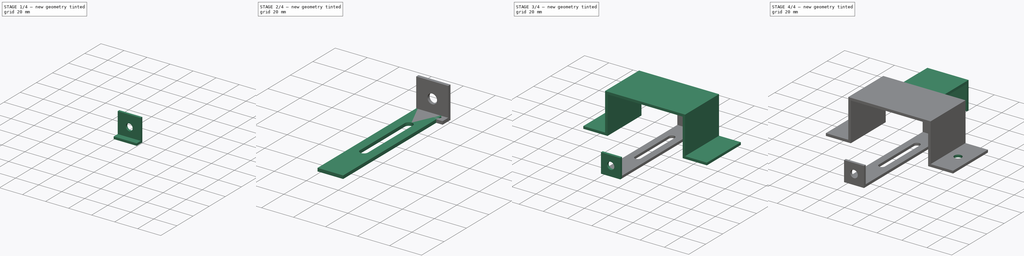
[diagram: build sequence overview — one tinted view per stage of 4, left to right]
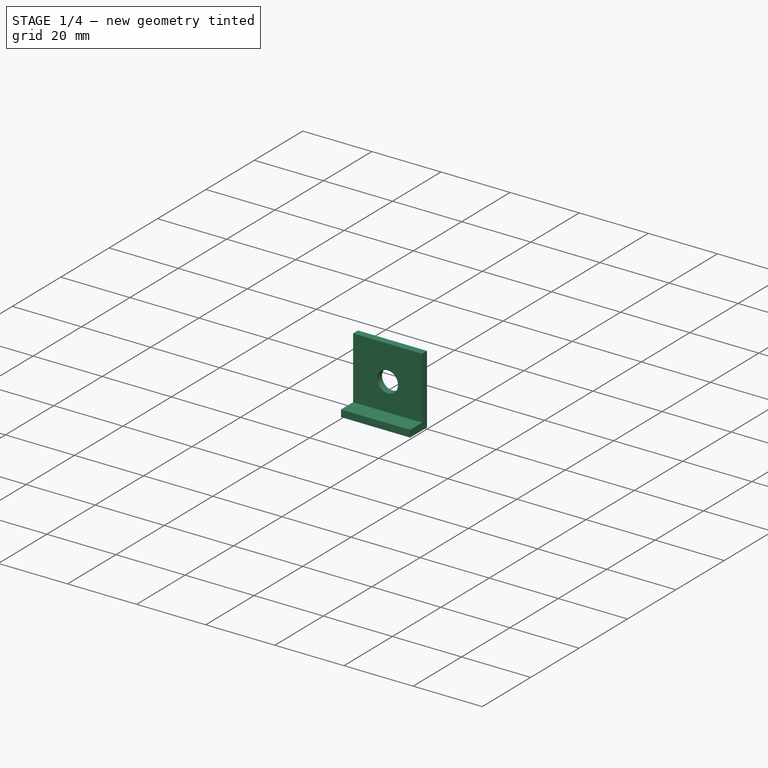
[diagram: stage 1 of 4 — iso view after this stage's code; geometry added in this stage tinted green]
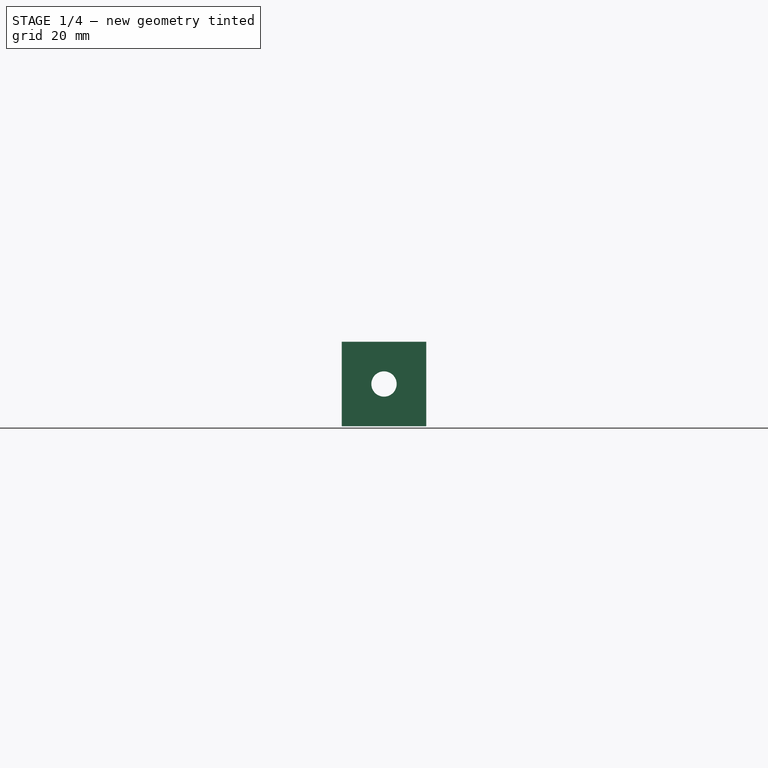
[diagram: stage 1 of 4 — front view after this stage's code; geometry added in this stage tinted green]
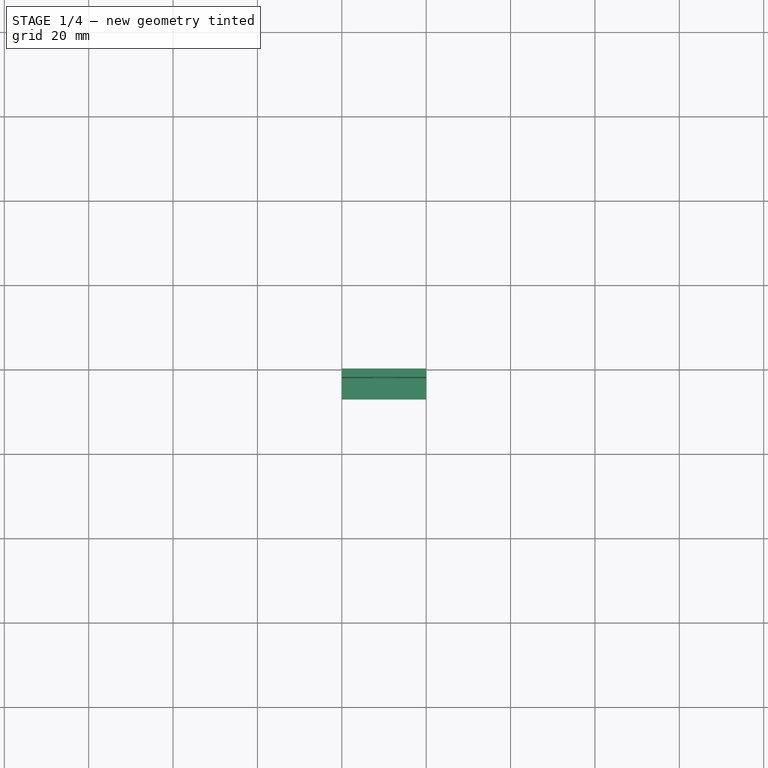
[diagram: stage 1 of 4 — top view after this stage's code; geometry added in this stage tinted green]
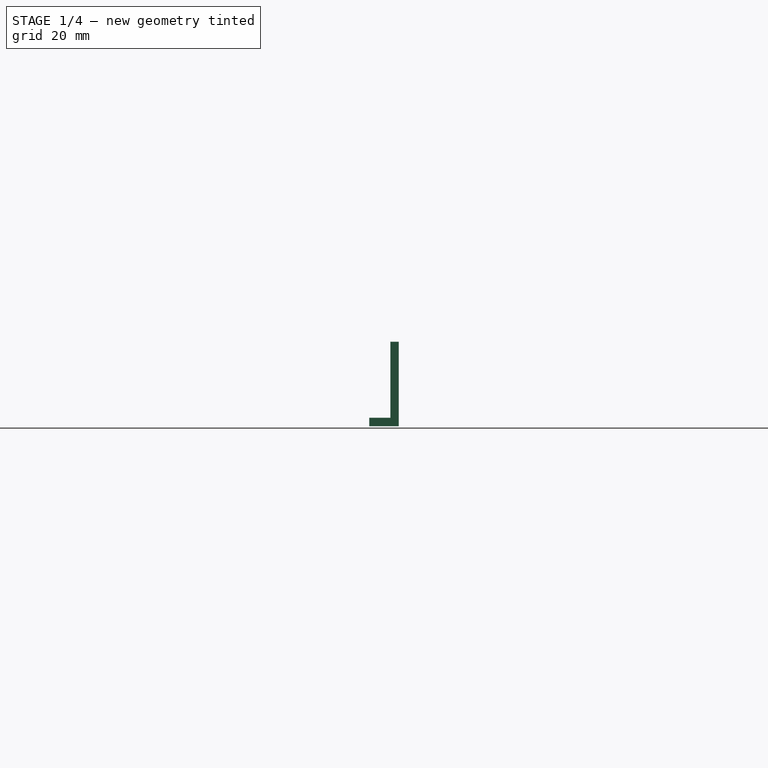
[diagram: stage 1 of 4 — right view after this stage's code; geometry added in this stage tinted green]
FCSTD DOCUMENT  (FreeCAD 0.18R16146 (Git))
Label: octopi_case
License: All rights reserved
LicenseURL: http://en.wikipedia.org/wiki/All_rights_reserved
objects: Sketcher::SketchObject×12, PartDesign::Pad×7, PartDesign::Hole×3, PartDesign::Body×3, PartDesign::Pocket×2, App::MeasureDistance×1
note: 39 computed .brp shape members not serialized (recipe doc carries the construction recipe); baked Part::Feature solids carry a one-line shape summary decoded from their .brp

FEATURE [PartDesign::Body] Body001  label="cam_bar"
  Group = -> [Sketch004,Pad003,Sketch005,Pocket,Sketch006,Pad004,Sketch007,Hole001]
  Origin = -> Origin001
  Placement = pos=(33,0,2) rot=(0,0,1;0rad)
  Tip = -> Hole001
FEATURE [Sketcher::SketchObject] Sketch008
  MapMode = 5
  Placement = pos=(0,0,0) rot=(1,0,0;1.5708rad)
  Support = -> [XZ_Plane002]
  sketch-geometry (4):
    g0: LineSegment StartX=0 StartY=20 StartZ=0 EndX=20 EndY=20 EndZ=0
    g1: LineSegment StartX=20 StartY=20 StartZ=0 EndX=20 EndY=0 EndZ=0
    g2: LineSegment StartX=20 StartY=0 StartZ=0 EndX=0 EndY=0 EndZ=0
    g3: LineSegment StartX=0 StartY=0 StartZ=0 EndX=0 EndY=20 EndZ=0
  constraints (11):
    c: Coincident(g0,g1)
    c: Coincident(g1,g2)
    c: Coincident(g2,g3)
    c: Coincident(g3,g0)
    c: Horizontal(g0)
    c: Horizontal(g2)
    c: Vertical(g1)
    c: Vertical(g3)
    c: Equal(g0,g1)
    c: DistanceX(g0,g0) = 20
    c: Coincident(g2,g-1)
FEATURE [PartDesign::Pad] Pad005
  Length = 2
  Length2 = 100
  Placement = pos=(0,0,0) rot=(1,0,0;1.5708rad)
  Profile = -> Sketch008
  Type = 0
FEATURE [Sketcher::SketchObject] Sketch009
  ExternalGeometry = -> [Pad005]
  MapMode = 5
  Placement = pos=(0,-2,1.3e-15) rot=(1,0,0;1.5708rad)
  Support = -> [Pad005]
  sketch-geometry (3):
    g0: LineSegment [constr] StartX=0 StartY=20 StartZ=0 EndX=20 EndY=0 EndZ=0
    g1: LineSegment [constr] StartX=20 StartY=20 StartZ=0 EndX=0 EndY=0 EndZ=0
    g2: Circle CenterX=10 CenterY=10 CenterZ=0 NormalX=0 NormalY=0 NormalZ=1 AngleXU=0 Radius=2.5
  constraints (7):
    c: Coincident(g0,g-5)
    c: Coincident(g0,g-6)
    c: Coincident(g1,g-4)
    c: Coincident(g1,g-1)
    c: Radius(g2) = 2.5
    c: PointOnObject(g2,g1)
    c: PointOnObject(g2,g0)
FEATURE [PartDesign::Hole] Hole002
  BaseFeature = -> Pad005
  Depth = 25
  DepthType = 0
  Diameter = 6
  DrillPoint = 1
  DrillPointAngle = 118
  HoleCutCountersinkAngle = 90
  HoleCutDepth = 0
  HoleCutDiameter = 0
  HoleCutType = 0
  ModelActualThread = false
  Placement = pos=(0,0,0) rot=(1,0,0;1.5708rad)
  Profile = -> Sketch009
  Tapered = false
  TaperedAngle = 90
  ThreadAngle = 0
  ThreadClass = 0
  ThreadCutOffInner = 0
  ThreadCutOffOuter = 0
  ThreadDirection = 0
  ThreadFit = 0
  ThreadPitch = 0
  ThreadSize = 0
  ThreadType = 0
  Threaded = false
FEATURE [Sketcher::SketchObject] Sketch010
  ExternalGeometry = -> [Hole002]
  MapMode = 5
  Placement = pos=(0,-2,2.2e-15) rot=(1,0,0;1.5708rad)
  Support = -> [Hole002]
  sketch-geometry (4):
    g0: LineSegment StartX=0 StartY=2 StartZ=0 EndX=20 EndY=2 EndZ=0
    g1: LineSegment StartX=20 StartY=2 StartZ=0 EndX=20 EndY=0 EndZ=0
    g2: LineSegment StartX=20 StartY=0 StartZ=0 EndX=0 EndY=0 EndZ=0
    g3: LineSegment StartX=0 StartY=0 StartZ=0 EndX=0 EndY=2 EndZ=0
  constraints (10):
    c: Coincident(g0,g1)
    c: Coincident(g1,g2)
    c: Coincident(g2,g3)
    c: Coincident(g3,g0)
    c: Horizontal(g0)
    c: Vertical(g1)
    c: Vertical(g3)
    c: DistanceY(g1,g1) = 2
    c: Coincident(g2,g-1)
    c: Coincident(g1,g-3)
FEATURE [PartDesign::Pad] Pad006
  BaseFeature = -> Hole002
  Length = 5
  Length2 = 100
  Placement = pos=(0,0,0) rot=(1,0,0;1.5708rad)
  Profile = -> Sketch010
  Type = 0
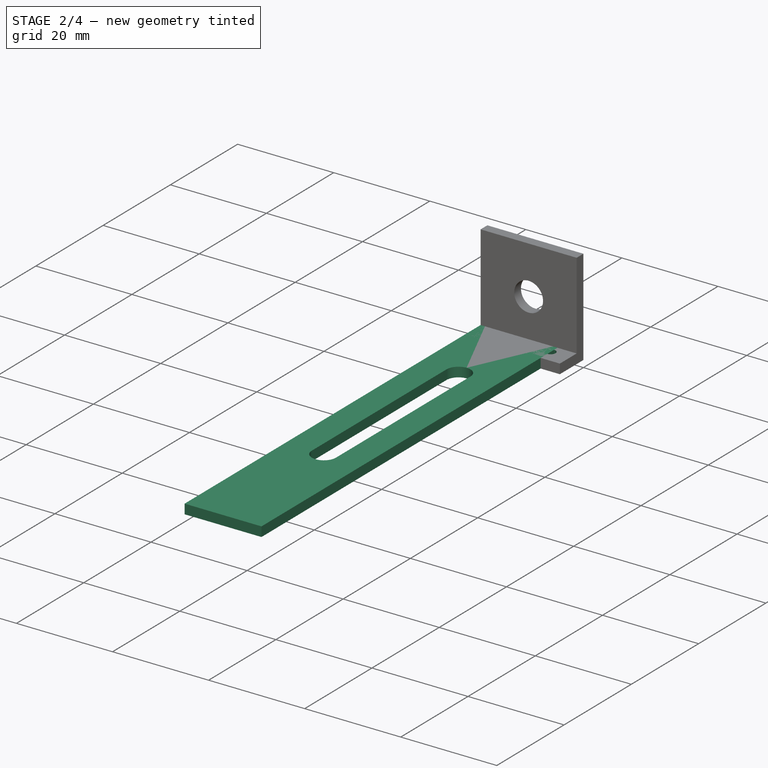
[diagram: stage 2 of 4 — iso view after this stage's code; geometry added in this stage tinted green]
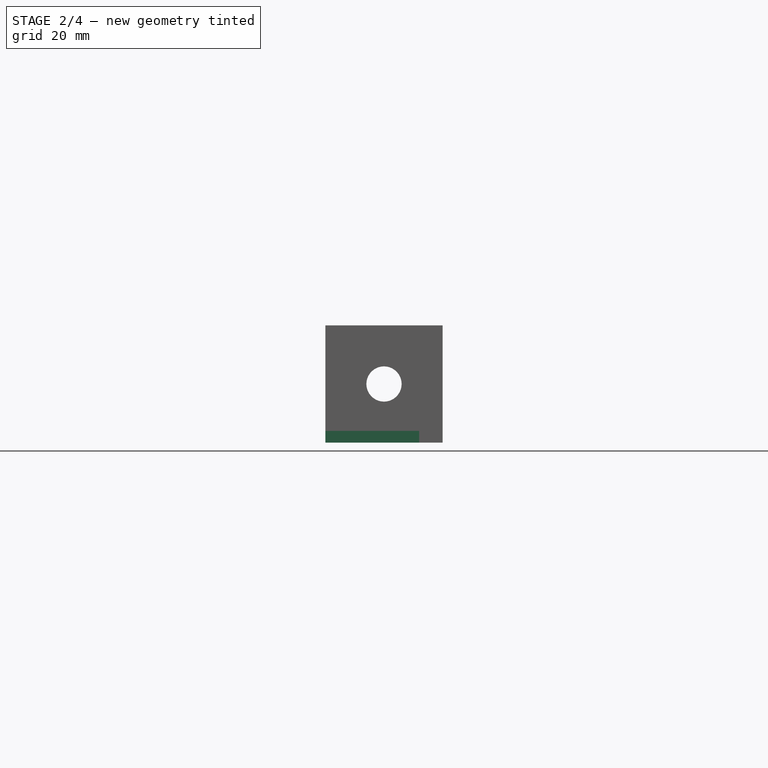
[diagram: stage 2 of 4 — front view after this stage's code; geometry added in this stage tinted green]
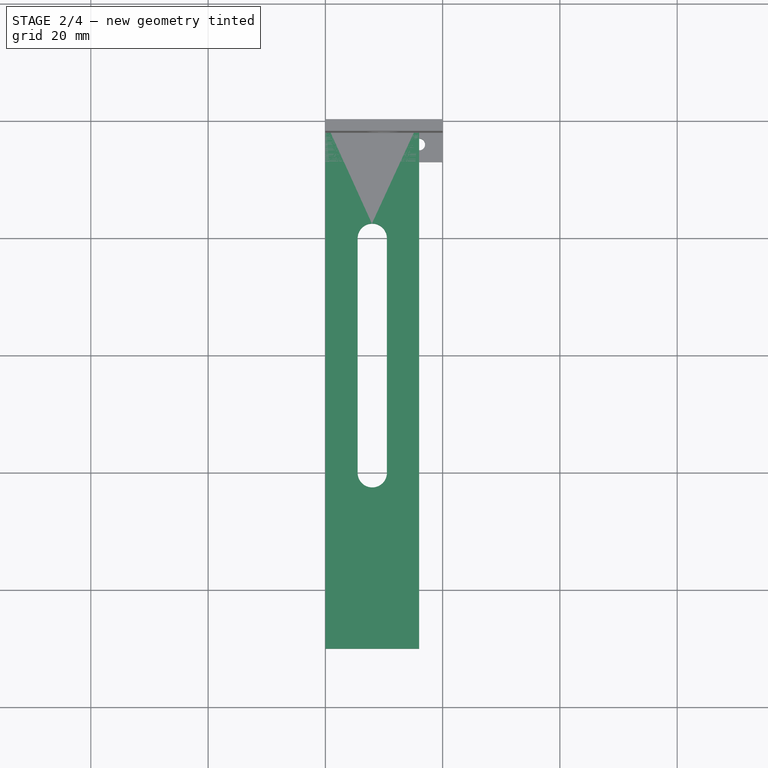
[diagram: stage 2 of 4 — top view after this stage's code; geometry added in this stage tinted green]
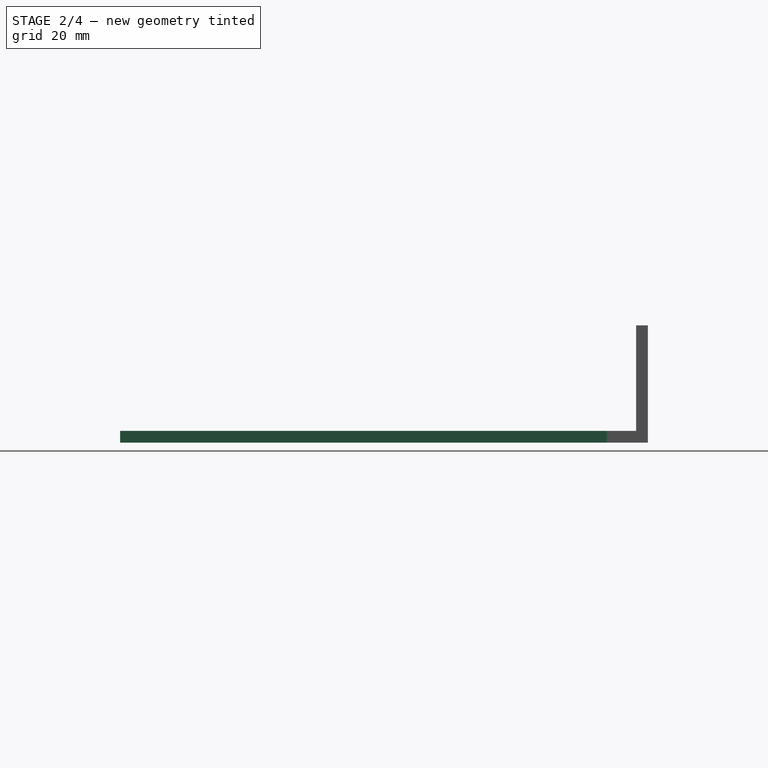
[diagram: stage 2 of 4 — right view after this stage's code; geometry added in this stage tinted green]
FEATURE [PartDesign::Body] Body
  Group = -> [Sketch,Pad,Sketch001,Hole,Sketch002,Pad001,Sketch003,Pad002]
  Origin = -> Origin
  Tip = -> Pad002
FEATURE [Sketcher::SketchObject] Sketch004
  MapMode = 5
  Support = -> [XY_Plane001]
  sketch-geometry (4):
    g0: LineSegment StartX=0 StartY=0 StartZ=0 EndX=16 EndY=0 EndZ=0
    g1: LineSegment StartX=16 StartY=0 StartZ=0 EndX=16 EndY=-90 EndZ=0
    g2: LineSegment StartX=16 StartY=-90 StartZ=0 EndX=0 EndY=-90 EndZ=0
    g3: LineSegment StartX=0 StartY=-90 StartZ=0 EndX=0 EndY=0 EndZ=0
  constraints (11):
    c: Coincident(g0,g1)
    c: Coincident(g1,g2)
    c: Coincident(g2,g3)
    c: Coincident(g3,g0)
    c: Horizontal(g0)
    c: Horizontal(g2)
    c: Vertical(g1)
    c: Vertical(g3)
    c: DistanceX(g0,g0) = 16
    c: DistanceY(g1,g1) = 90
    c: Coincident(g0,g-1)
FEATURE [PartDesign::Pad] Pad003
  Length = 2
  Length2 = 100
  Profile = -> Sketch004
  Type = 0
FEATURE [Sketcher::SketchObject] Sketch005
  ExternalGeometry = -> [Pad003]
  MapMode = 5
  Placement = pos=(0,0,0) rot=(1,0,0;3.14159rad)
  Support = -> [Pad003]
  sketch-geometry (8):
    g0: LineSegment [constr] StartX=0 StartY=20 StartZ=0 EndX=8 EndY=20 EndZ=0
    g1: LineSegment [constr] StartX=8 StartY=20 StartZ=0 EndX=16 EndY=20 EndZ=0
    g2: LineSegment StartX=10.5 StartY=60 StartZ=0 EndX=10.5 EndY=20 EndZ=0
    g3: LineSegment StartX=5.5 StartY=20 StartZ=0 EndX=5.5 EndY=60 EndZ=0
    g4: ArcOfCircle CenterX=8 CenterY=60 CenterZ=0 NormalX=0 NormalY=0 NormalZ=1 AngleXU=0 Radius=2.5 StartAngle=1.1e-15 EndAngle=3.14159
    g5: ArcOfCircle CenterX=8 CenterY=20 CenterZ=0 NormalX=0 NormalY=0 NormalZ=1 AngleXU=0 Radius=2.5 StartAngle=3.14159 EndAngle=6.28319
    g6: LineSegment [constr] StartX=5.5 StartY=60 StartZ=0 EndX=10.5 EndY=60 EndZ=0
    g7: LineSegment [constr] StartX=5.5 StartY=20 StartZ=0 EndX=10.5 EndY=20 EndZ=0
  constraints (24):
    c: Horizontal(g0)
    c: Coincident(g0,g1)
    c: Horizontal(g1)
    c: Equal(g1,g0)
    c: PointOnObject(g0,g-3)
    c: PointOnObject(g1,g-4)
    c: Vertical(g2)
    c: Coincident(g5,g2)
    c: Coincident(g4,g3)
    c: Coincident(g4,g2)
    c: Coincident(g5,g3)
    c: Angle(g4) = 3.14159
    c: Angle(g5) = 3.14159
    c: Horizontal(g6)
    c: Horizontal(g7)
    c: Equal(g6,g7)
    c: Distance(g6) = 5
    c: Coincident(g6,g3)
    c: Coincident(g2,g6)
    c: Coincident(g7,g3)
    c: Coincident(g7,g2)
    c: Distance(g5,g4) = 40
    c: Coincident(g5,g0)
    c: Distance(g-1,g0) = 20
FEATURE [PartDesign::Pocket] Pocket
  BaseFeature = -> Pad003
  Length = 2
  Length2 = 100
  Profile = -> Sketch005
  Type = 0
FEATURE [Sketcher::SketchObject] Sketch011
  ExternalGeometry = -> [Pad006]
  MapMode = 5
  Placement = pos=(0,3.1e-15,2) rot=(0,0,1;3.14159rad)
  Support = -> [Pad006]
  sketch-geometry (5):
    g0: Circle CenterX=-16 CenterY=4 CenterZ=0 NormalX=0 NormalY=0 NormalZ=1 AngleXU=0 Radius=1
    g1: Circle CenterX=-4 CenterY=4 CenterZ=0 NormalX=0 NormalY=0 NormalZ=1 AngleXU=0 Radius=1
    g2: LineSegment [constr] StartX=-20 StartY=4 StartZ=0 EndX=-16 EndY=4 EndZ=0
    g3: LineSegment [constr] StartX=-16 StartY=4 StartZ=0 EndX=-4 EndY=4 EndZ=0
    g4: LineSegment [constr] StartX=-4 StartY=4 StartZ=0 EndX=0 EndY=4 EndZ=0
  constraints (14):
    c: Radius(g1) = 1
    c: Equal(g1,g0)
    c: DistanceX(g0,g1) = 12
    c: DistanceY(g0,g1) = 0
    c: Coincident(g2,g3)
    c: Coincident(g3,g4)
    c: Horizontal(g4)
    c: Equal(g4,g2)
    c: Horizontal(g2)
    c: Coincident(g2,g0)
    c: Coincident(g3,g1)
    c: PointOnObject(g4,g-5)
    c: PointOnObject(g2,g-4)
    c: Distance(g1,g-6) = 2
FEATURE [PartDesign::Pocket] Pocket001
  BaseFeature = -> Pad006
  Length = 5
  Length2 = 100
  Placement = pos=(0,0,0) rot=(1,0,0;1.5708rad)
  Profile = -> Sketch011
  Type = 0
FEATURE [PartDesign::Body] Body002  label="cam_dodai"
  Group = -> [Sketch008,Pad005,Sketch009,Hole002,Sketch010,Pad006,Sketch011,Pocket001]
  Origin = -> Origin002
  Placement = pos=(33,-92,2) rot=(0,0,1;0rad)
  Tip = -> Pocket001
FEATURE [App::MeasureDistance] Distance  label="Distance: 2.95 mm"
  Distance = 2.95012
  P1 = (41.3226,-94,7.02187)
  P2 = (41.8589,-94,4.12092)
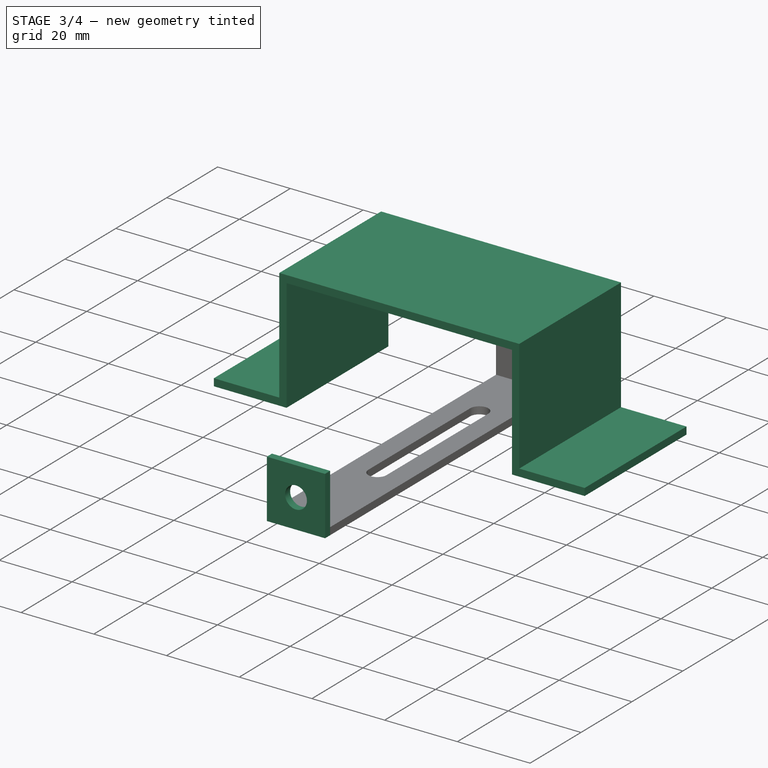
[diagram: stage 3 of 4 — iso view after this stage's code; geometry added in this stage tinted green]
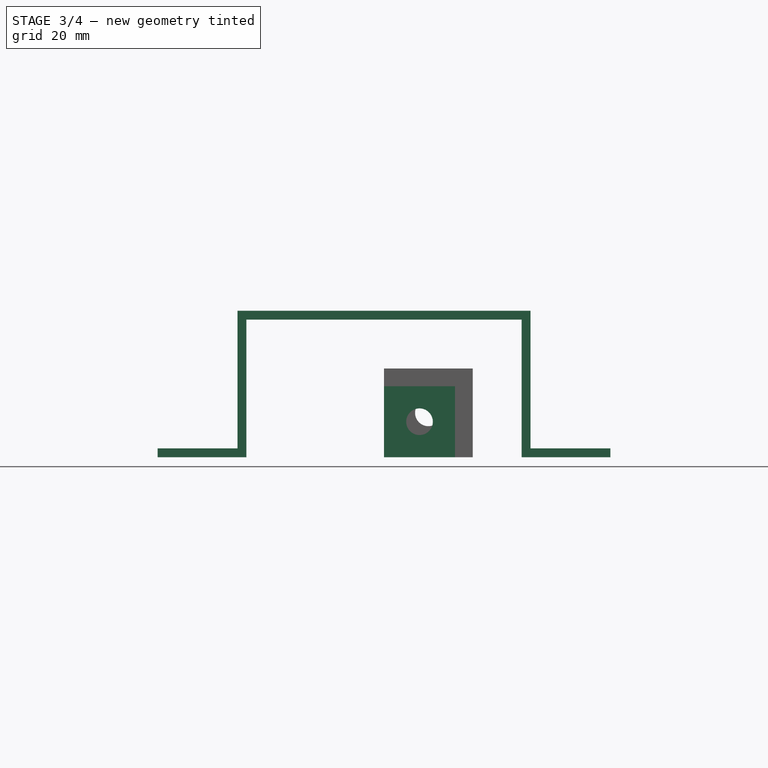
[diagram: stage 3 of 4 — front view after this stage's code; geometry added in this stage tinted green]
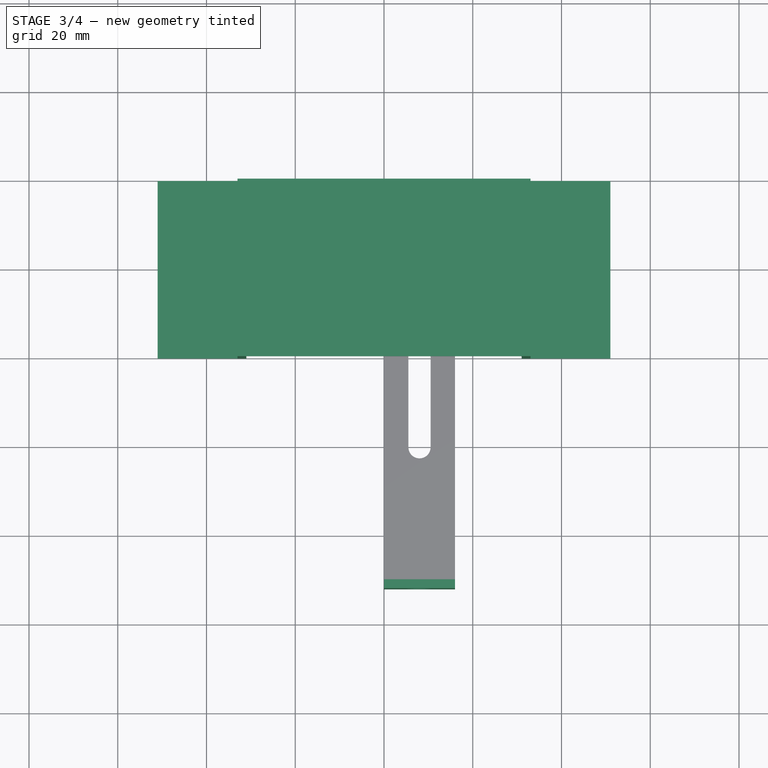
[diagram: stage 3 of 4 — top view after this stage's code; geometry added in this stage tinted green]
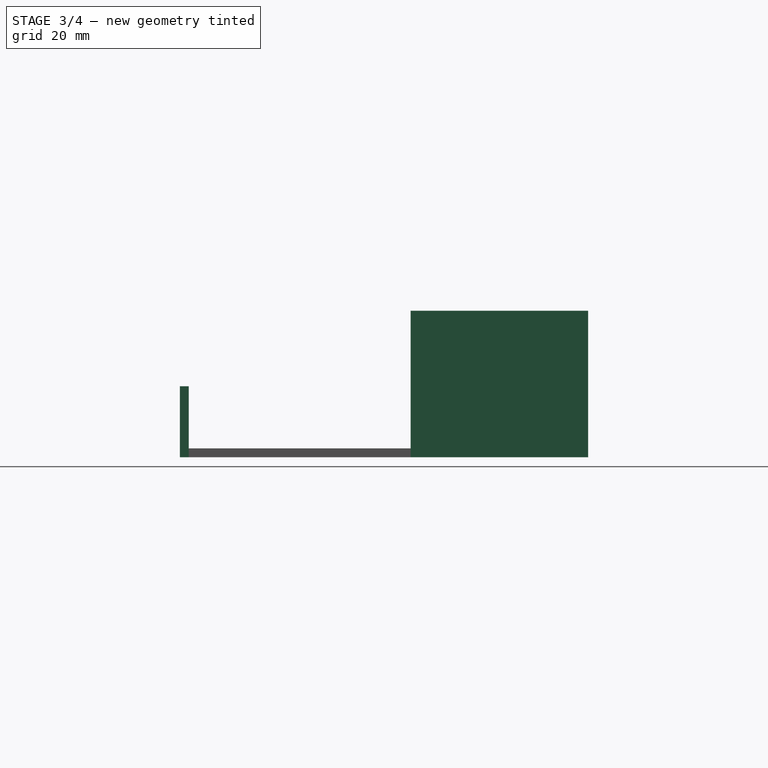
[diagram: stage 3 of 4 — right view after this stage's code; geometry added in this stage tinted green]
FEATURE [Sketcher::SketchObject] Sketch
  MapMode = 5
  Placement = pos=(0,0,0) rot=(1,0,0;1.5708rad)
  Support = -> [XZ_Plane]
  sketch-geometry (12):
    g0: LineSegment StartX=-31 StartY=0 StartZ=0 EndX=-31 EndY=31 EndZ=0
    g1: LineSegment StartX=-31 StartY=31 StartZ=0 EndX=31 EndY=31 EndZ=0
    g2: LineSegment StartX=31 StartY=31 StartZ=0 EndX=31 EndY=0 EndZ=0
    g3: LineSegment StartX=31 StartY=0 StartZ=0 EndX=51 EndY=0 EndZ=0
    g4: LineSegment StartX=51 StartY=0 StartZ=0 EndX=51 EndY=2 EndZ=0
    g5: LineSegment StartX=51 StartY=2 StartZ=0 EndX=33 EndY=2 EndZ=0
    g6: LineSegment StartX=33 StartY=2 StartZ=0 EndX=33 EndY=33 EndZ=0
    g7: LineSegment StartX=33 StartY=33 StartZ=0 EndX=-33 EndY=33 EndZ=0
    g8: LineSegment StartX=-33 StartY=33 StartZ=0 EndX=-33 EndY=2 EndZ=0
    g9: LineSegment StartX=-33 StartY=2 StartZ=0 EndX=-51 EndY=2 EndZ=0
    g10: LineSegment StartX=-51 StartY=2 StartZ=0 EndX=-51 EndY=0 EndZ=0
    g11: LineSegment StartX=-51 StartY=0 StartZ=0 EndX=-31 EndY=0 EndZ=0
  constraints (36):
    c: Vertical(g0)
    c: Coincident(g0,g1)
    c: Horizontal(g1)
    c: Coincident(g1,g2)
    c: Coincident(g2,g3)
    c: Coincident(g3,g4)
    c: Coincident(g4,g5)
    c: Coincident(g5,g6)
    c: Coincident(g6,g7)
    c: Horizontal(g7)
    c: Coincident(g7,g8)
    c: Vertical(g8)
    c: Coincident(g8,g9)
    c: Horizontal(g9)
    c: Coincident(g9,g10)
    c: Coincident(g10,g11)
    c: Coincident(g11,g0)
    c: Horizontal(g11)
    c: Horizontal(g3)
    c: Horizontal(g5)
    c: Vertical(g2)
    c: Vertical(g6)
    c: Vertical(g10)
    c: Distance(g10) = 2
    c: Distance(g4) = 2
    c: DistanceY(g0,g7) = 2
    c: DistanceX(g8,g0) = 2
    c: DistanceX(g2,g5) = 2
    c: Vertical(g4)
    c: Distance(g1) = 62
    c: PointOnObject(g0,g-1)
    c: PointOnObject(g2,g-1)
    c: Distance(g-1,g0) = 31
    c: Distance(g0) = 31
    c: Equal(g11,g3)
    c: Distance(g11) = 20
FEATURE [PartDesign::Pad] Pad
  Length = 40
  Length2 = 100
  Placement = pos=(0,0,0) rot=(1,0,0;1.5708rad)
  Profile = -> Sketch
  Type = 0
FEATURE [Sketcher::SketchObject] Sketch006
  ExternalGeometry = -> [Pocket]
  MapMode = 5
  Placement = pos=(0,-90,0) rot=(1,0,0;1.5708rad)
  Support = -> [Pocket]
  sketch-geometry (4):
    g0: LineSegment StartX=0 StartY=16 StartZ=0 EndX=16 EndY=16 EndZ=0
    g1: LineSegment StartX=16 StartY=16 StartZ=0 EndX=16 EndY=0 EndZ=0
    g2: LineSegment StartX=16 StartY=0 StartZ=0 EndX=0 EndY=0 EndZ=0
    g3: LineSegment StartX=0 StartY=0 StartZ=0 EndX=0 EndY=16 EndZ=0
  constraints (10):
    c: Coincident(g0,g1)
    c: Coincident(g1,g2)
    c: Coincident(g2,g3)
    c: Coincident(g3,g0)
    c: Horizontal(g0)
    c: Vertical(g1)
    c: Vertical(g3)
    c: Equal(g2,g1)
    c: Coincident(g2,g-1)
    c: Coincident(g-3,g1)
FEATURE [PartDesign::Pad] Pad004
  BaseFeature = -> Pocket
  Length = 2
  Length2 = 100
  Profile = -> Sketch006
  Type = 0
FEATURE [Sketcher::SketchObject] Sketch007
  ExternalGeometry = -> [Pad004]
  MapMode = 5
  Placement = pos=(0,-92,0) rot=(1,0,0;1.5708rad)
  Support = -> [Pad004]
  sketch-geometry (3):
    g0: LineSegment [constr] StartX=0 StartY=16 StartZ=0 EndX=16 EndY=0 EndZ=0
    g1: LineSegment [constr] StartX=16 StartY=16 StartZ=0 EndX=0 EndY=0 EndZ=0
    g2: Circle CenterX=8 CenterY=8 CenterZ=0 NormalX=0 NormalY=0 NormalZ=1 AngleXU=0 Radius=3
  constraints (7):
    c: Coincident(g0,g-6)
    c: Coincident(g0,g-5)
    c: Coincident(g1,g-4)
    c: Coincident(g1,g-1)
    c: Radius(g2) = 3
    c: PointOnObject(g2,g0)
    c: PointOnObject(g2,g1)
FEATURE [PartDesign::Hole] Hole001
  BaseFeature = -> Pad004
  Depth = 25
  DepthType = 0
  Diameter = 6
  DrillPoint = 1
  DrillPointAngle = 118
  HoleCutCountersinkAngle = 90
  HoleCutDepth = 0
  HoleCutDiameter = 0
  HoleCutType = 0
  ModelActualThread = false
  Profile = -> Sketch007
  Tapered = false
  TaperedAngle = 90
  ThreadAngle = 0
  ThreadClass = 0
  ThreadCutOffInner = 0
  ThreadCutOffOuter = 0
  ThreadDirection = 0
  ThreadFit = 0
  ThreadPitch = 0
  ThreadSize = 0
  ThreadType = 0
  Threaded = false
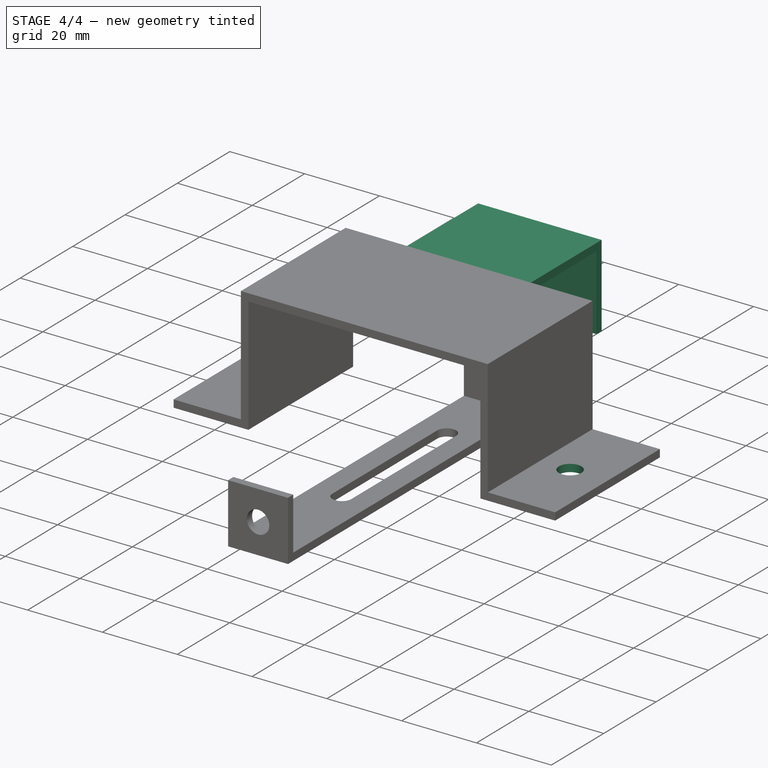
[diagram: stage 4 of 4 — iso view after this stage's code; geometry added in this stage tinted green]
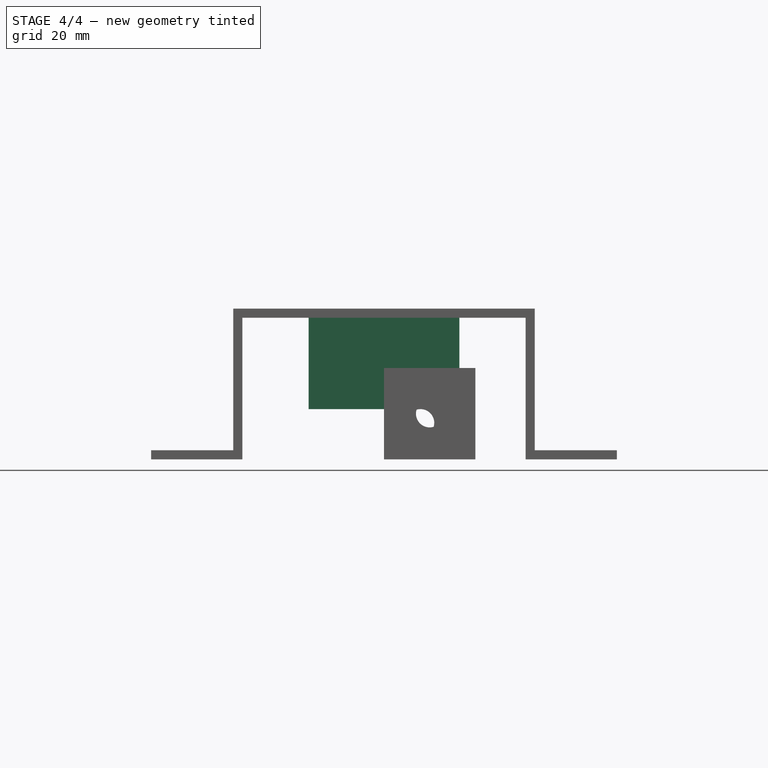
[diagram: stage 4 of 4 — front view after this stage's code; geometry added in this stage tinted green]
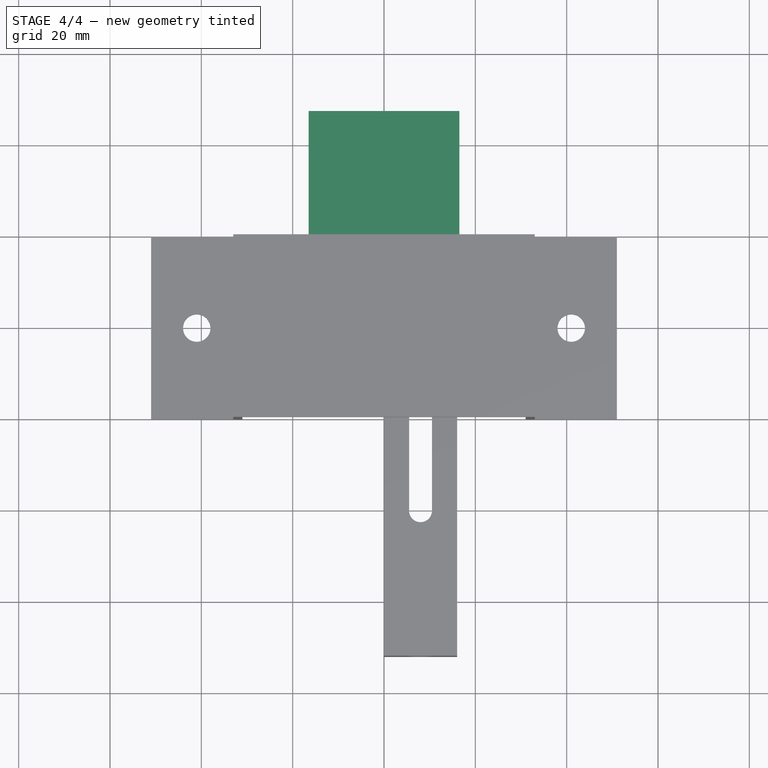
[diagram: stage 4 of 4 — top view after this stage's code; geometry added in this stage tinted green]
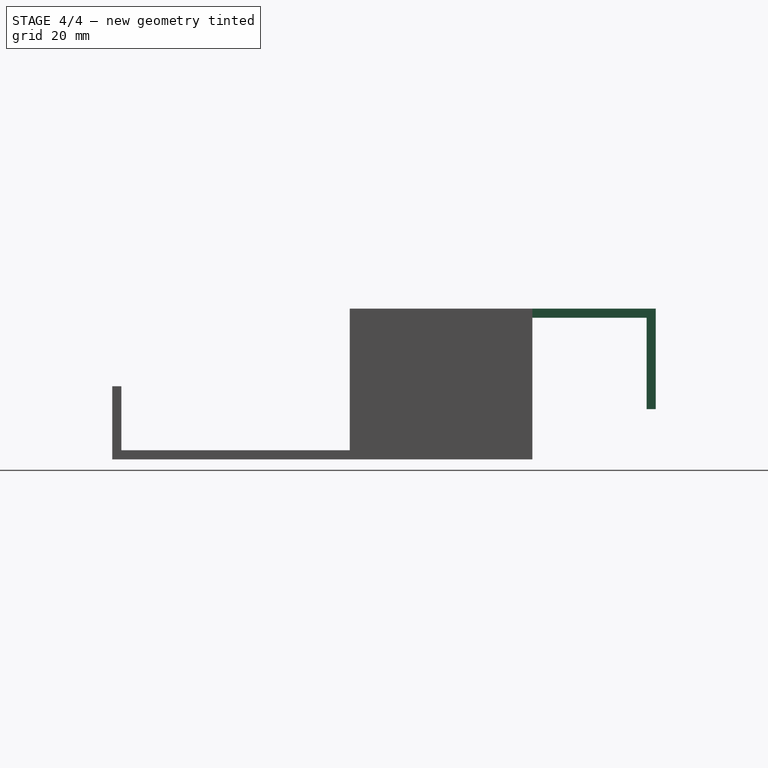
[diagram: stage 4 of 4 — right view after this stage's code; geometry added in this stage tinted green]
FEATURE [Sketcher::SketchObject] Sketch001
  ExternalGeometry = -> [Pad]
  MapMode = 5
  Placement = pos=(0,0,0) rot=(1,0,0;3.14159rad)
  Support = -> [Pad]
  sketch-geometry (9):
    g0: LineSegment [constr] StartX=-51 StartY=20 StartZ=0 EndX=-41 EndY=20 EndZ=0
    g1: LineSegment [constr] StartX=-41 StartY=20 StartZ=0 EndX=-31 EndY=20 EndZ=0
    g2: LineSegment [constr] StartX=-31 StartY=20 StartZ=0 EndX=31 EndY=20 EndZ=0
    g3: LineSegment [constr] StartX=31 StartY=20 StartZ=0 EndX=41 EndY=20 EndZ=0
    g4: LineSegment [constr] StartX=41 StartY=20 StartZ=0 EndX=51 EndY=20 EndZ=0
    g5: LineSegment [constr] StartX=-31 StartY=40 StartZ=0 EndX=-31 EndY=20 EndZ=0
    g6: LineSegment [constr] StartX=-31 StartY=20 StartZ=0 EndX=-31 EndY=0 EndZ=0
    g7: Circle CenterX=41 CenterY=20 CenterZ=0 NormalX=0 NormalY=0 NormalZ=1 AngleXU=0 Radius=5
    g8: Circle CenterX=-41 CenterY=20 CenterZ=0 NormalX=0 NormalY=0 NormalZ=1 AngleXU=0 Radius=5
  constraints (24):
    c: Horizontal(g0)
    c: Coincident(g0,g1)
    c: Horizontal(g1)
    c: Coincident(g1,g2)
    c: Horizontal(g2)
    c: Coincident(g2,g3)
    c: Horizontal(g3)
    c: Coincident(g3,g4)
    c: Horizontal(g4)
    c: Equal(g0,g1)
    c: Equal(g1,g3)
    c: Equal(g3,g4)
    c: PointOnObject(g0,g-3)
    c: PointOnObject(g4,g-4)
    c: PointOnObject(g1,g-7)
    c: Coincident(g5,g6)
    c: Equal(g5,g6)
    c: Coincident(g5,g-7)
    c: Coincident(g6,g-7)
    c: Coincident(g1,g5)
    c: Radius(g7) = 5
    c: Equal(g7,g8)
    c: Coincident(g8,g0)
    c: Coincident(g7,g3)
FEATURE [PartDesign::Hole] Hole
  BaseFeature = -> Pad
  Depth = 25
  DepthType = 0
  Diameter = 6
  DrillPoint = 1
  DrillPointAngle = 118
  HoleCutCountersinkAngle = 90
  HoleCutDepth = 0
  HoleCutDiameter = 0
  HoleCutType = 0
  ModelActualThread = false
  Placement = pos=(0,0,0) rot=(1,0,0;1.5708rad)
  Profile = -> Sketch001
  Tapered = false
  TaperedAngle = 90
  ThreadAngle = 0
  ThreadClass = 0
  ThreadCutOffInner = 0
  ThreadCutOffOuter = 0
  ThreadDirection = 0
  ThreadFit = 0
  ThreadPitch = 0
  ThreadSize = 0
  ThreadType = 0
  Threaded = false
FEATURE [Sketcher::SketchObject] Sketch002
  ExternalGeometry = -> [Hole]
  MapMode = 5
  Placement = pos=(0,2.18e-14,33) rot=(0,0,1;3.14159rad)
  Support = -> [Hole]
  sketch-geometry (8):
    g0: LineSegment StartX=-16.5 StartY=0 StartZ=0 EndX=16.5 EndY=0 EndZ=0
    g1: LineSegment StartX=16.5 StartY=0 StartZ=0 EndX=16.5 EndY=-27 EndZ=0
    g2: LineSegment StartX=16.5 StartY=-27 StartZ=0 EndX=-16.5 EndY=-27 EndZ=0
    g3: LineSegment StartX=-16.5 StartY=-27 StartZ=0 EndX=-16.5 EndY=0 EndZ=0
    g4: LineSegment [constr] StartX=-33 StartY=0 StartZ=0 EndX=-16.5 EndY=0 EndZ=0
    g5: LineSegment [constr] StartX=-16.5 StartY=0 StartZ=0 EndX=0 EndY=0 EndZ=0
    g6: LineSegment [constr] StartX=0 StartY=0 StartZ=0 EndX=16.5 EndY=0 EndZ=0
    g7: LineSegment [constr] StartX=16.5 StartY=0 StartZ=0 EndX=33 EndY=0 EndZ=0
  constraints (21):
    c: Coincident(g0,g1)
    c: Coincident(g1,g2)
    c: Coincident(g2,g3)
    c: Coincident(g3,g0)
    c: Horizontal(g0)
    c: Horizontal(g2)
    c: Vertical(g1)
    c: Vertical(g3)
    c: DistanceY(g3,g3) = 27
    c: Horizontal(g4)
    c: Coincident(g4,g5)
    c: Coincident(g5,g6)
    c: Coincident(g6,g7)
    c: Equal(g7,g6)
    c: Equal(g6,g5)
    c: Equal(g5,g4)
    c: Horizontal(g5)
    c: Coincident(g4,g-3)
    c: Coincident(g7,g-3)
    c: Coincident(g0,g4)
    c: Coincident(g0,g6)
FEATURE [PartDesign::Pad] Pad001
  BaseFeature = -> Hole
  Length = 2
  Length2 = 100
  Placement = pos=(0,0,0) rot=(1,0,0;1.5708rad)
  Profile = -> Sketch002
  Reversed = true
  Type = 0
FEATURE [Sketcher::SketchObject] Sketch003
  ExternalGeometry = -> [Pad001]
  MapMode = 5
  Placement = pos=(0,3.94e-14,31) rot=(1,0,0;3.14159rad)
  Support = -> [Pad001]
  sketch-geometry (4):
    g0: LineSegment StartX=-16.5 StartY=-25 StartZ=0 EndX=16.5 EndY=-25 EndZ=0
    g1: LineSegment StartX=16.5 StartY=-25 StartZ=0 EndX=16.5 EndY=-27 EndZ=0
    g2: LineSegment StartX=16.5 StartY=-27 StartZ=0 EndX=-16.5 EndY=-27 EndZ=0
    g3: LineSegment StartX=-16.5 StartY=-27 StartZ=0 EndX=-16.5 EndY=-25 EndZ=0
  constraints (10):
    c: Coincident(g0,g1)
    c: Coincident(g1,g2)
    c: Coincident(g2,g3)
    c: Coincident(g3,g0)
    c: Horizontal(g0)
    c: Vertical(g1)
    c: Vertical(g3)
    c: Distance(g1) = 2
    c: Coincident(g1,g-5)
    c: Coincident(g2,g-4)
FEATURE [PartDesign::Pad] Pad002
  BaseFeature = -> Pad001
  Length = 20
  Length2 = 100
  Placement = pos=(0,0,0) rot=(1,0,0;1.5708rad)
  Profile = -> Sketch003
  Type = 0
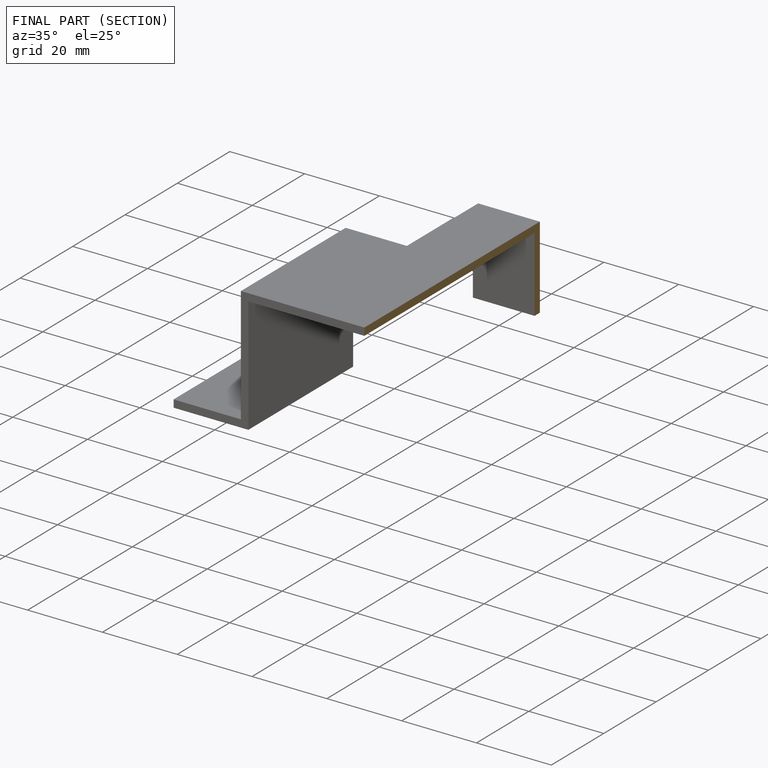
[diagram: finished part — half-section view (interior)]
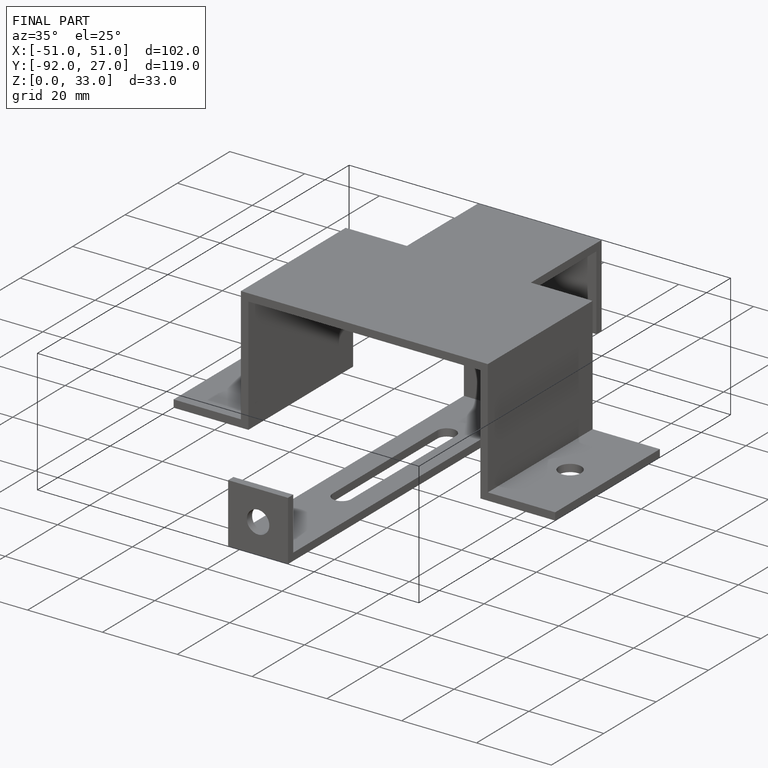
[diagram: finished part — iso view with bounding-box wireframe]
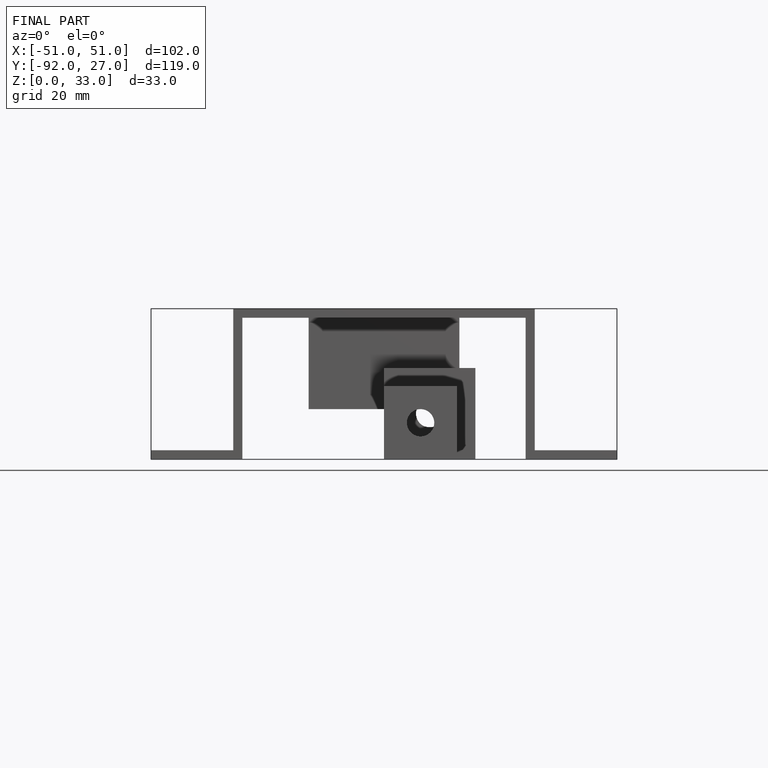
[diagram: finished part — front view with bounding-box wireframe]
